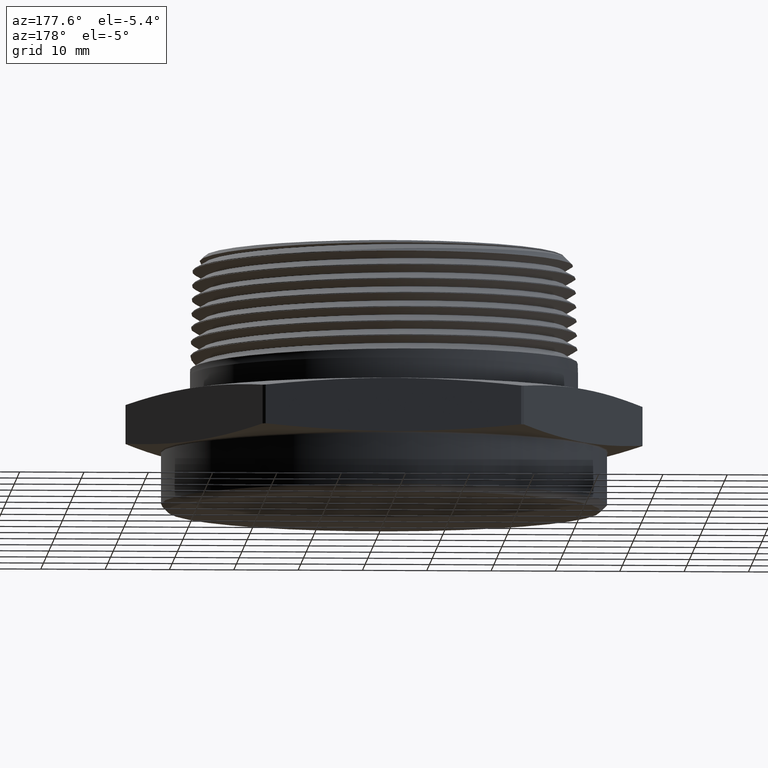
[diagram: clean part render]
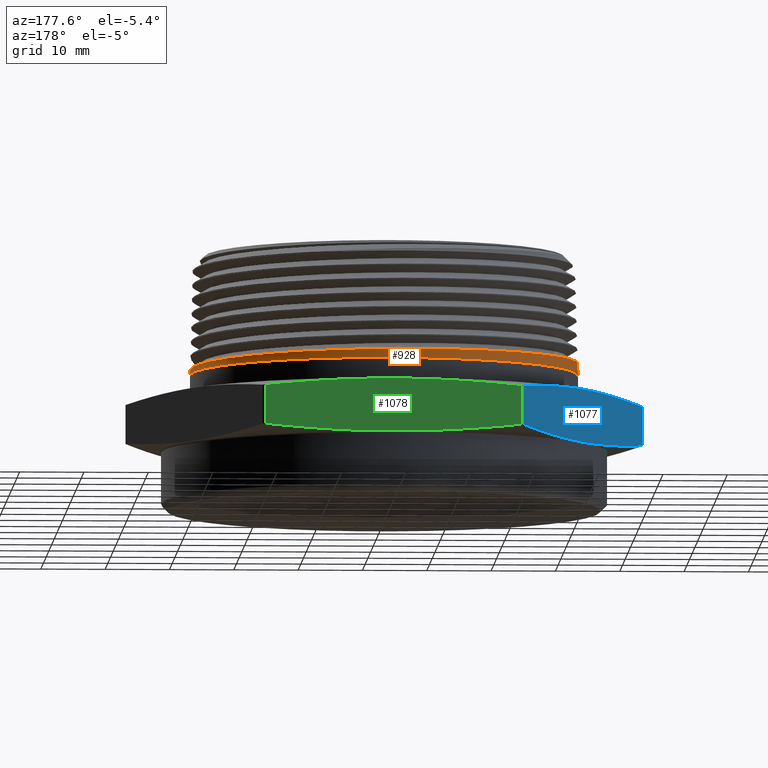
[diagram: same view with three faces highlighted in distinct colors, each labeled with its STEP entity id]
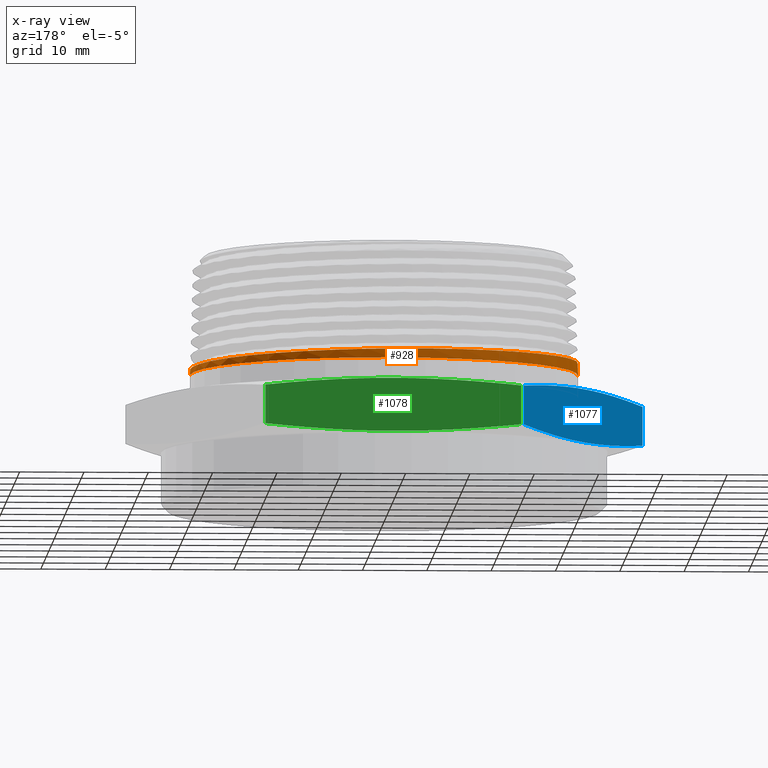
[diagram: x-ray of the same camera — body ghosted, the three highlighted faces saturated]
A machine part, auxiliary view with three faces highlighted in distinct colors.
The next image is the same camera in x-ray (body ghosted, the three faces saturated) — at least one of them is partly hidden behind the body in this view.
Their STEP definitions:

[orange] entity #928 — the highlighted conical surface has half-angle 1.47 deg.
#1 = B_SPLINE_CURVE_WITH_KNOTS ( 'NONE', 3,
 ( #4116, #4054, #4119, #4120, #4121, #4122, #4123, #4124, #4125, #4126, #4127, #4128, #4129, #4130, #4131, #4132, #4133, #4134, #4135, #4136, #4137, #4138, #4139, #4140, #4141, #4142, #4143, #4144, #4145, #4146, #4147, #4148, #4149, #4150, #4151, #4152, #4153, #4154, #4155, #4156, #4157, #4158, #2132, #2134, #2136, #2137, #2138, #2139, #2140, #2141, #2142, #2143, #2144, #2145, #2146, #2147, #2148, #2149, #2150 ),
 .UNSPECIFIED., .F., .F.,
 ( 4, 2, 2, 2, 2, 2, 2, 2, 2, 2, 2, 2, 1, 2, 2, 2, 2, 2, 2, 2, 2, 2, 2, 2, 2, 2, 2, 2, 2, 4 ),
 ( 1.265157035959991100, 1.271114233060938800, 1.277071430161886800, 1.280050028712360800, 1.283028627262834600, 1.288985824363782600, 1.290475123639019500, 1.291964422914256400, 1.294943021464730400, 1.300900218565678400, 1.302389517840915300, 1.303878817116152200, 1.306857415666626200, 1.309836014217100200, 1.311325313492337100, 1.312814612767574200, 1.318771809868521900, 1.321750408418995900, 1.323239707694232800, 1.324729006969469700, 1.330686204070417700, 1.332175503345654600, 1.333664802620891700, 1.336643401171365500, 1.342600598272313500, 1.345579196822787300, 1.348557795373261300, 1.351536393923735300, 1.354514992474209300, 1.360472189575157000 ),
 .UNSPECIFIED. ) ;
#259 = VERTEX_POINT ( 'NONE', #718 ) ;
#260 = VERTEX_POINT ( 'NONE', #719 ) ;
#261 = VERTEX_POINT ( 'NONE', #720 ) ;
#263 = VERTEX_POINT ( 'NONE', #722 ) ;
#364 = FACE_OUTER_BOUND ( 'NONE', #7762, .T. ) ;
#369 = CONICAL_SURFACE ( 'NONE', #1912, 1.190625841662516200, 0.02565634000430881300 ) ;
#439 = CIRCLE ( 'NONE', #1952, 1.187500000000000000 ) ;
#461 = LINE ( 'NONE', #2153, #466 ) ;
#463 = LINE ( 'NONE', #2151, #464 ) ;
#464 = VECTOR ( 'NONE', #2152, 39.37007874015748100 ) ;
#466 = VECTOR ( 'NONE', #2155, 39.37007874015748100 ) ;
#718 = CARTESIAN_POINT ( 'NONE',  ( 1.187500000000000000, 1.454268073987482100E-016, 0.4712952533779566900 ) ) ;
#719 = CARTESIAN_POINT ( 'NONE',  ( 1.186645000533695000, 2.325153602604478400E-015, 0.5046130164504506500 ) ) ;
#720 = CARTESIAN_POINT ( 'NONE',  ( -1.185529218039113300, 2.274924391407512300E-016, 0.5480930164504473900 ) ) ;
#722 = CARTESIAN_POINT ( 'NONE',  ( -1.187500000000000000, 0.0000000000000000000, 0.4712952533779566900 ) ) ;
#928 = ADVANCED_FACE ( 'NONE', ( #364 ), #369, .T. ) ;
#985 = EDGE_CURVE ( 'NONE', #259, #263, #439, .T. ) ;
#1003 = EDGE_CURVE ( 'NONE', #261, #260, #1, .T. ) ;
#1004 = EDGE_CURVE ( 'NONE', #260, #259, #463, .T. ) ;
#1005 = EDGE_CURVE ( 'NONE', #261, #263, #461, .T. ) ;
#1912 = AXIS2_PLACEMENT_3D ( 'NONE', #7502, #7503, #7501 ) ;
#1952 = AXIS2_PLACEMENT_3D ( 'NONE', #7452, #7453, #7454 ) ;
#2132 = CARTESIAN_POINT ( 'NONE',  ( 0.7218548040415977400, 0.9416272591902055100, 0.5172987961424917500 ) ) ;
#2134 = CARTESIAN_POINT ( 'NONE',  ( 0.7373033257065349000, 0.9295863388575664700, 0.5170698427939277600 ) ) ;
#2136 = CARTESIAN_POINT ( 'NONE',  ( 0.7824801641867199500, 0.8925529211223479600, 0.5163883320848224900 ) ) ;
#2137 = CARTESIAN_POINT ( 'NONE',  ( 0.8111929858414329600, 0.8665422282882092600, 0.5159395668998423300 ) ) ;
#2138 = CARTESIAN_POINT ( 'NONE',  ( 0.8932151111282196100, 0.7846382726929890300, 0.5145874166139703400 ) ) ;
#2139 = CARTESIAN_POINT ( 'NONE',  ( 0.9424482228740184200, 0.7249107285644358400, 0.5136886628153893900 ) ) ;
#2140 = CARTESIAN_POINT ( 'NONE',  ( 1.007797037613782100, 0.6273235666293351900, 0.5123187687695460700 ) ) ;
#2141 = CARTESIAN_POINT ( 'NONE',  ( 1.027838601989221600, 0.5939127469888761900, 0.5118621106508806100 ) ) ;
#2142 = CARTESIAN_POINT ( 'NONE',  ( 1.064399995896448700, 0.5256350527655588900, 0.5109586247198986100 ) ) ;
#2143 = CARTESIAN_POINT ( 'NONE',  ( 1.080946920566124000, 0.4907271711376317000, 0.5105111791534385800 ) ) ;
#2144 = CARTESIAN_POINT ( 'NONE',  ( 1.110599150168443800, 0.4193850267074643600, 0.5096101134771527900 ) ) ;
#2145 = CARTESIAN_POINT ( 'NONE',  ( 1.123704577839516300, 0.3829508208012160100, 0.5091563017313202000 ) ) ;
#2146 = CARTESIAN_POINT ( 'NONE',  ( 1.146399631428870700, 0.3085230475455215700, 0.5082486122123172100 ) ) ;
#2147 = CARTESIAN_POINT ( 'NONE',  ( 1.156000551553802300, 0.2703969431377229400, 0.5077932606791172300 ) ) ;
#2148 = CARTESIAN_POINT ( 'NONE',  ( 1.178913977157351800, 0.1557369007236940900, 0.5064295606771448400 ) ) ;
#2149 = CARTESIAN_POINT ( 'NONE',  ( 1.186621550452725500, 0.07834936641155605700, 0.5055268231515939200 ) ) ;
#2150 = CARTESIAN_POINT ( 'NONE',  ( 1.186645000533695000, 2.325153602604478400E-015, 0.5046130164504506500 ) ) ;
#2151 = CARTESIAN_POINT ( 'NONE',  ( 1.190625841662516200, 1.458096125974123800E-016, 0.3494869294921574300 ) ) ;
#2152 = DIRECTION ( 'NONE',  ( 0.02565352539212722600, 3.141650775831395700E-018, -0.9996708941621514900 ) ) ;
#2153 = CARTESIAN_POINT ( 'NONE',  ( -1.190625841662516200, 0.0000000000000000000, 0.3494869294921574300 ) ) ;
#2155 = DIRECTION ( 'NONE',  ( -0.02565352539212722600, 0.0000000000000000000, -0.9996708941621514900 ) ) ;
#4054 = CARTESIAN_POINT ( 'NONE',  ( -1.185552364866833100, 0.07726344532175590000, 0.5471910269729636200 ) ) ;
#4116 = CARTESIAN_POINT ( 'NONE',  ( -1.185529218039113300, 2.274924391407512300E-016, 0.5480930164504473900 ) ) ;
#4119 = CARTESIAN_POINT ( 'NONE',  ( -1.178086352173045100, 0.1543899314581342900, 0.5462908250482291200 ) ) ;
#4120 = CARTESIAN_POINT ( 'NONE',  ( -1.147583427452140600, 0.3080377417040107100, 0.5444622321591525700 ) ) ;
#4121 = CARTESIAN_POINT ( 'NONE',  ( -1.125045672143206100, 0.3820973092240323400, 0.5435629159192231200 ) ) ;
#4122 = CARTESIAN_POINT ( 'NONE',  ( -1.080744580254827400, 0.4892048604533593700, 0.5422099896608809600 ) ) ;
#4123 = CARTESIAN_POINT ( 'NONE',  ( -1.064215578262863900, 0.5242388180217841800, 0.5417556731158967900 ) ) ;
#4124 = CARTESIAN_POINT ( 'NONE',  ( -1.027550806646072600, 0.5929382687705682100, 0.5408467010763754500 ) ) ;
#4125 = CARTESIAN_POINT ( 'NONE',  ( -1.007342736713496200, 0.6266727826662276100, 0.5403909640290821500 ) ) ;
#4126 = CARTESIAN_POINT ( 'NONE',  ( -0.9425844693445903900, 0.7236058148130791700, 0.5390302385099566800 ) ) ;
#4127 = CARTESIAN_POINT ( 'NONE',  ( -0.8935883081882248800, 0.7833226022213313200, 0.5381329808507732100 ) ) ;
#4128 = CARTESIAN_POINT ( 'NONE',  ( -0.8251198639186297900, 0.8518844992812528700, 0.5370021423065878300 ) ) ;
#4129 = CARTESIAN_POINT ( 'NONE',  ( -0.8110617863376209400, 0.8652899435649631400, 0.5367746569754915400 ) ) ;
#4130 = CARTESIAN_POINT ( 'NONE',  ( -0.7822049237777806100, 0.8914769358367781200, 0.5363185009841774400 ) ) ;
#4131 = CARTESIAN_POINT ( 'NONE',  ( -0.7673636454827506000, 0.9042924785028266800, 0.5360891993062711900 ) ) ;
#4132 = CARTESIAN_POINT ( 'NONE',  ( -0.7220577596804596000, 0.9414943537273717800, 0.5354050127422423900 ) ) ;
#4133 = CARTESIAN_POINT ( 'NONE',  ( -0.6908620598927920400, 0.9646163587516342100, 0.5349550689753570500 ) ) ;
#4134 = CARTESIAN_POINT ( 'NONE',  ( -0.5943911507575859700, 1.029099077274784800, 0.5336007943509795100 ) ) ;
#4135 = CARTESIAN_POINT ( 'NONE',  ( -0.5262592485251443900, 1.065622663532655800, 0.5327029490711466800 ) ) ;
#4136 = CARTESIAN_POINT ( 'NONE',  ( -0.4362022294050961800, 1.102992859965931800, 0.5315651440979773900 ) ) ;
#4137 = CARTESIAN_POINT ( 'NONE',  ( -0.4178952989146358400, 1.110064857804311300, 0.5313353360683005200 ) ) ;
#4138 = CARTESIAN_POINT ( 'NONE',  ( -0.3811368055257720600, 1.123228837636532500, 0.5308783364505647000 ) ) ;
#4139 = CARTESIAN_POINT ( 'NONE',  ( -0.3626626550636379300, 1.129333128187707000, 0.5306508484705119200 ) ) ;
#4140 = CARTESIAN_POINT ( 'NONE',  ( -0.3069606477823183000, 1.146238862818395900, 0.5299715521159665800 ) ) ;
#4141 = CARTESIAN_POINT ( 'NONE',  ( -0.2319471195450937000, 1.165034084998976200, 0.5290755634887667200 ) ) ;
#4142 = CARTESIAN_POINT ( 'NONE',  ( -0.1554672780070059900, 1.176447018760473400, 0.5281689342902526900 ) ) ;
#4143 = CARTESIAN_POINT ( 'NONE',  ( -0.09754960539404714000, 1.182198757297056700, 0.5274897392509081400 ) ) ;
#4144 = CARTESIAN_POINT ( 'NONE',  ( -0.07815058714126262000, 1.183647183855378600, 0.5272633082092207400 ) ) ;
#4145 = CARTESIAN_POINT ( 'NONE',  ( -0.03916292208708917200, 1.185589339514688400, 0.5268091500416661700 ) ) ;
#4146 = CARTESIAN_POINT ( 'NONE',  ( -0.01954189397042072400, 1.186080644378378200, 0.5265810441218236000 ) ) ;
#4147 = CARTESIAN_POINT ( 'NONE',  ( 0.07798128790274976000, 1.186112910210298100, 0.5254430795010510700 ) ) ;
#4148 = CARTESIAN_POINT ( 'NONE',  ( 0.1549157591591844300, 1.178514770269864200, 0.5245452872261151500 ) ) ;
#4149 = CARTESIAN_POINT ( 'NONE',  ( 0.2687324953125742600, 1.155973076588658200, 0.5231915886205067400 ) ) ;
#4150 = CARTESIAN_POINT ( 'NONE',  ( 0.3064053281851953900, 1.146588511806850800, 0.5227364309159487900 ) ) ;
#4151 = CARTESIAN_POINT ( 'NONE',  ( 0.3625030967906844900, 1.129618340833904200, 0.5220525827164274000 ) ) ;
#4152 = CARTESIAN_POINT ( 'NONE',  ( 0.3811306150739211500, 1.123475660409458500, 0.5218243083834801500 ) ) ;
#4153 = CARTESIAN_POINT ( 'NONE',  ( 0.4178335666572631200, 1.110360670836470800, 0.5213709071737152600 ) ) ;
#4154 = CARTESIAN_POINT ( 'NONE',  ( 0.4359619717756860700, 1.103373228060992300, 0.5211451340211865600 ) ) ;
#4155 = CARTESIAN_POINT ( 'NONE',  ( 0.5255068070190290800, 1.066321443092879100, 0.5200144909034597500 ) ) ;
#4156 = CARTESIAN_POINT ( 'NONE',  ( 0.5936629346111258500, 1.029973314738974200, 0.5191175203917365300 ) ) ;
#4157 = CARTESIAN_POINT ( 'NONE',  ( 0.6744788076253216400, 0.9760982503665707200, 0.5179845058043317500 ) ) ;
#4158 = CARTESIAN_POINT ( 'NONE',  ( 0.6904210562605198600, 0.9648974840390091000, 0.5177564317700893400 ) ) ;
#7452 = CARTESIAN_POINT ( 'NONE',  ( 0.0000000000000000000, 0.0000000000000000000, 0.4712952533779566900 ) ) ;
#7453 = DIRECTION ( 'NONE',  ( 0.0000000000000000000, 0.0000000000000000000, 1.000000000000000000 ) ) ;
#7454 = DIRECTION ( 'NONE',  ( -1.000000000000000000, 0.0000000000000000000, 0.0000000000000000000 ) ) ;
#7501 = DIRECTION ( 'NONE',  ( -1.000000000000000000, 0.0000000000000000000, 0.0000000000000000000 ) ) ;
#7502 = CARTESIAN_POINT ( 'NONE',  ( 0.0000000000000000000, 0.0000000000000000000, 0.3494869294921574300 ) ) ;
#7503 = DIRECTION ( 'NONE',  ( -0.0000000000000000000, -0.0000000000000000000, -1.000000000000000000 ) ) ;
#7758 = ORIENTED_EDGE ( 'NONE', *, *, #1003, .T. ) ;
#7759 = ORIENTED_EDGE ( 'NONE', *, *, #1004, .T. ) ;
#7760 = ORIENTED_EDGE ( 'NONE', *, *, #985, .T. ) ;
#7762 = EDGE_LOOP ( 'NONE', ( #7758, #7759, #7760, #7763 ) ) ;
#7763 = ORIENTED_EDGE ( 'NONE', *, *, #1005, .F. ) ;

[blue] entity #1077 — the highlighted planar face has unit normal (0.866, -0.5, 0).
#234 = VERTEX_POINT ( 'NONE', #1106 ) ;
#237 = VERTEX_POINT ( 'NONE', #1116 ) ;
#245 = VERTEX_POINT ( 'NONE', #704 ) ;
#251 = VERTEX_POINT ( 'NONE', #710 ) ;
#704 = CARTESIAN_POINT ( 'NONE',  ( -1.581678705560181500, 0.01045212071999071300, 0.04606382122047169400 ) ) ;
#710 = CARTESIAN_POINT ( 'NONE',  ( -1.581678705560181500, 0.01045212071999071300, 0.2839361787795283700 ) ) ;
#964 = EDGE_CURVE ( 'NONE', #234, #245, #7329, .T. ) ;
#978 = EDGE_CURVE ( 'NONE', #251, #237, #7335, .T. ) ;
#1055 = EDGE_CURVE ( 'NONE', #245, #251, #7212, .T. ) ;
#1066 = EDGE_CURVE ( 'NONE', #237, #234, #7231, .T. ) ;
#1077 = ADVANCED_FACE ( 'NONE', ( #7241 ), #7042, .F. ) ;
#1106 = CARTESIAN_POINT ( 'NONE',  ( -0.7998911548470244400, 1.364547879280008800, 0.04606382122047169400 ) ) ;
#1116 = CARTESIAN_POINT ( 'NONE',  ( -0.7998911548470244400, 1.364547879280008800, 0.2839361787795282600 ) ) ;
#1969 = AXIS2_PLACEMENT_3D ( 'NONE', #7040, #7044, #7045 ) ;
#6947 = CARTESIAN_POINT ( 'NONE',  ( -1.581678705560181500, 0.01045212071999071300, 4.905664297508273200E-017 ) ) ;
#6948 = DIRECTION ( 'NONE',  ( 1.254986547952384500E-016, 0.0000000000000000000, 1.000000000000000000 ) ) ;
#6973 = CARTESIAN_POINT ( 'NONE',  ( -0.7998911548470244400, 1.364547879280008800, -4.905664297508273200E-017 ) ) ;
#6974 = DIRECTION ( 'NONE',  ( -1.254986547952384500E-016, -0.0000000000000000000, -1.000000000000000000 ) ) ;
#7040 = CARTESIAN_POINT ( 'NONE',  ( -0.7938566201357349900, 1.375000000000000000, 0.3300000000000000200 ) ) ;
#7042 = PLANE ( 'NONE',  #1969 ) ;
#7044 = DIRECTION ( 'NONE',  ( 0.8660254037844387100, -0.4999999999999999400, 0.0000000000000000000 ) ) ;
#7045 = DIRECTION ( 'NONE',  ( 0.4999999999999998900, 0.8660254037844386000, 0.0000000000000000000 ) ) ;
#7212 = LINE ( 'NONE', #6947, #7216 ) ;
#7216 = VECTOR ( 'NONE', #6948, 39.37007874015748100 ) ;
#7231 = LINE ( 'NONE', #6973, #7234 ) ;
#7234 = VECTOR ( 'NONE', #6974, 39.37007874015748100 ) ;
#7241 = FACE_OUTER_BOUND ( 'NONE', #7902, .T. ) ;
#7329 = B_SPLINE_CURVE_WITH_KNOTS ( 'NONE', 3,
 ( #7338, #7351, #7355, #7356, #7357, #7358, #7359, #7360, #7361 ),
 .UNSPECIFIED., .F., .F.,
 ( 4, 2, 1, 2, 4 ),
 ( 1.903613379434268900E-006, 0.009930605507436527200, 0.01985930740149361900, 0.02978800929555071300, 0.03971671118960780300 ),
 .UNSPECIFIED. ) ;
#7335 = B_SPLINE_CURVE_WITH_KNOTS ( 'NONE', 3,
 ( #7424, #7423, #7428, #7429, #7430, #7431, #7432, #7433, #7434 ),
 .UNSPECIFIED., .F., .F.,
 ( 4, 2, 1, 2, 4 ),
 ( 1.903613379468012400E-006, 0.009930605507436558400, 0.01985930740149364700, 0.02978800929555073700, 0.03971671118960783100 ),
 .UNSPECIFIED. ) ;
#7338 = CARTESIAN_POINT ( 'NONE',  ( -0.7998911548470244400, 1.364547879280008800, 0.04606382122047169400 ) ) ;
#7351 = CARTESIAN_POINT ( 'NONE',  ( -0.8650401174064541500, 1.251706566066674400, 0.03237478046069743000 ) ) ;
#7355 = CARTESIAN_POINT ( 'NONE',  ( -0.9301890799658838500, 1.138865252853339200, 0.02127979410151632100 ) ) ;
#7356 = CARTESIAN_POINT ( 'NONE',  ( -1.060487005084743300, 0.9131826264266694700, 0.006132968187239073100 ) ) ;
#7357 = CARTESIAN_POINT ( 'NONE',  ( -1.190784930203602700, 0.6874999999999996700, -0.001881836953839036600 ) ) ;
#7358 = CARTESIAN_POINT ( 'NONE',  ( -1.321082855322462700, 0.4618173735733299700, 0.006132968187239067100 ) ) ;
#7359 = CARTESIAN_POINT ( 'NONE',  ( -1.451380780441321900, 0.2361347471466603800, 0.02127979410151635200 ) ) ;
#7360 = CARTESIAN_POINT ( 'NONE',  ( -1.516529743000751800, 0.1232934339333254800, 0.03237478046069750700 ) ) ;
#7361 = CARTESIAN_POINT ( 'NONE',  ( -1.581678705560181500, 0.01045212071999071300, 0.04606382122047169400 ) ) ;
#7423 = CARTESIAN_POINT ( 'NONE',  ( -1.516529743000751800, 0.1232934339333255200, 0.2976252195393025400 ) ) ;
#7424 = CARTESIAN_POINT ( 'NONE',  ( -1.581678705560181500, 0.01045212071999071300, 0.2839361787795283700 ) ) ;
#7428 = CARTESIAN_POINT ( 'NONE',  ( -1.451380780441321900, 0.2361347471466603300, 0.3087202058984836500 ) ) ;
#7429 = CARTESIAN_POINT ( 'NONE',  ( -1.321082855322462300, 0.4618173735733299100, 0.3238670318127607800 ) ) ;
#7430 = CARTESIAN_POINT ( 'NONE',  ( -1.190784930203602900, 0.6874999999999991100, 0.3318818369538388800 ) ) ;
#7431 = CARTESIAN_POINT ( 'NONE',  ( -1.060487005084743700, 0.9131826264266692500, 0.3238670318127608300 ) ) ;
#7432 = CARTESIAN_POINT ( 'NONE',  ( -0.9301890799658841800, 1.138865252853339200, 0.3087202058984836500 ) ) ;
#7433 = CARTESIAN_POINT ( 'NONE',  ( -0.8650401174064544800, 1.251706566066673500, 0.2976252195393026000 ) ) ;
#7434 = CARTESIAN_POINT ( 'NONE',  ( -0.7998911548470244400, 1.364547879280008800, 0.2839361787795282600 ) ) ;
#7697 = ORIENTED_EDGE ( 'NONE', *, *, #964, .T. ) ;
#7698 = ORIENTED_EDGE ( 'NONE', *, *, #1055, .T. ) ;
#7699 = ORIENTED_EDGE ( 'NONE', *, *, #978, .T. ) ;
#7700 = ORIENTED_EDGE ( 'NONE', *, *, #1066, .T. ) ;
#7902 = EDGE_LOOP ( 'NONE', ( #7697, #7698, #7699, #7700 ) ) ;

[green] entity #1078 — the highlighted planar face has unit normal (0, -1, 0).
#273 = VERTEX_POINT ( 'NONE', #732 ) ;
#276 = VERTEX_POINT ( 'NONE', #735 ) ;
#732 = CARTESIAN_POINT ( 'NONE',  ( 0.7817875507131566400, 1.375000000000000000, 0.04606382122047169400 ) ) ;
#735 = CARTESIAN_POINT ( 'NONE',  ( 0.7817875507131566400, 1.375000000000000000, 0.2839361787795280400 ) ) ;
#966 = EDGE_CURVE ( 'NONE', #273, #7907, #7336, .T. ) ;
#976 = EDGE_CURVE ( 'NONE', #7911, #276, #7332, .T. ) ;
#1064 = EDGE_CURVE ( 'NONE', #276, #273, #7228, .T. ) ;
#1067 = EDGE_CURVE ( 'NONE', #7907, #7911, #7233, .T. ) ;
#1078 = ADVANCED_FACE ( 'NONE', ( #7237 ), #7041, .F. ) ;
#1970 = AXIS2_PLACEMENT_3D ( 'NONE', #7043, #7048, #7049 ) ;
#6467 = CARTESIAN_POINT ( 'NONE',  ( -0.7817875507131566400, 1.375000000000000000, 0.04606382122047159000 ) ) ;
#6470 = CARTESIAN_POINT ( 'NONE',  ( -0.7817875507131566400, 1.375000000000000000, 0.2839361787795282600 ) ) ;
#6961 = CARTESIAN_POINT ( 'NONE',  ( 0.7817875507131566400, 1.375000000000000000, -9.811328595016540200E-017 ) ) ;
#6962 = DIRECTION ( 'NONE',  ( -1.254986547952384500E-016, -0.0000000000000000000, -1.000000000000000000 ) ) ;
#6975 = CARTESIAN_POINT ( 'NONE',  ( -0.7817875507131566400, 1.375000000000000000, 9.811328595016540200E-017 ) ) ;
#6976 = DIRECTION ( 'NONE',  ( 1.254986547952384500E-016, 0.0000000000000000000, 1.000000000000000000 ) ) ;
#7041 = PLANE ( 'NONE',  #1970 ) ;
#7043 = CARTESIAN_POINT ( 'NONE',  ( 0.7938566201357347700, 1.375000000000000000, 0.3300000000000000200 ) ) ;
#7048 = DIRECTION ( 'NONE',  ( 0.0000000000000000000, -1.000000000000000000, 0.0000000000000000000 ) ) ;
#7049 = DIRECTION ( 'NONE',  ( 0.0000000000000000000, -0.0000000000000000000, -1.000000000000000000 ) ) ;
#7228 = LINE ( 'NONE', #6961, #7230 ) ;
#7230 = VECTOR ( 'NONE', #6962, 39.37007874015748100 ) ;
#7233 = LINE ( 'NONE', #6975, #7236 ) ;
#7236 = VECTOR ( 'NONE', #6976, 39.37007874015748100 ) ;
#7237 = FACE_OUTER_BOUND ( 'NONE', #7826, .T. ) ;
#7332 = B_SPLINE_CURVE_WITH_KNOTS ( 'NONE', 3,
 ( #7410, #7409, #7415, #7416, #7417, #7418, #7419, #7420, #7421, #7422 ),
 .UNSPECIFIED., .F., .F.,
 ( 4, 2, 2, 2, 4 ),
 ( 0.03377675413933822800, 0.04374512694864142500, 0.05371349975794462200, 0.06368187256724781900, 0.07365024537655101600 ),
 .UNSPECIFIED. ) ;
#7336 = B_SPLINE_CURVE_WITH_KNOTS ( 'NONE', 3,
 ( #7362, #7363, #7367, #7368, #7369, #7370, #7371, #7372, #7373, #7374 ),
 .UNSPECIFIED., .F., .F.,
 ( 4, 2, 2, 2, 4 ),
 ( 0.07652353289355171000, 0.08648215368286722700, 0.09644077447218275800, 0.1063993952614982900, 0.1163580160508138200 ),
 .UNSPECIFIED. ) ;
#7362 = CARTESIAN_POINT ( 'NONE',  ( 0.7817875507131566400, 1.375000000000000000, 0.04606382122047169400 ) ) ;
#7363 = CARTESIAN_POINT ( 'NONE',  ( 0.6517690188196211300, 1.375000000000000200, 0.03240413338589520600 ) ) ;
#7367 = CARTESIAN_POINT ( 'NONE',  ( 0.5216927118626062400, 1.375000000000000000, 0.02132047231032512700 ) ) ;
#7368 = CARTESIAN_POINT ( 'NONE',  ( 0.2613827868470721700, 1.375000000000000000, 0.006167207480143550900 ) ) ;
#7369 = CARTESIAN_POINT ( 'NONE',  ( 0.1311481683233737500, 1.375000000000000000, 0.002142211639687543200 ) ) ;
#7370 = CARTESIAN_POINT ( 'NONE',  ( -0.1295008694142240600, 1.374999999999999300, 0.002109024465002107700 ) ) ;
#7371 = CARTESIAN_POINT ( 'NONE',  ( -0.2599153173382532900, 1.375000000000000000, 0.006102113234283274400 ) ) ;
#7372 = CARTESIAN_POINT ( 'NONE',  ( -0.5209049358096949900, 1.375000000000000000, 0.02125445821051955700 ) ) ;
#7373 = CARTESIAN_POINT ( 'NONE',  ( -0.6515949468959757500, 1.375000000000000200, 0.03238584546875673800 ) ) ;
#7374 = CARTESIAN_POINT ( 'NONE',  ( -0.7817875507131566400, 1.375000000000000000, 0.04606382122047159000 ) ) ;
#7409 = CARTESIAN_POINT ( 'NONE',  ( -0.6515949468959755200, 1.375000000000000200, 0.2976141545312431200 ) ) ;
#7410 = CARTESIAN_POINT ( 'NONE',  ( -0.7817875507131566400, 1.375000000000000000, 0.2839361787795282600 ) ) ;
#7415 = CARTESIAN_POINT ( 'NONE',  ( -0.5209049358096944400, 1.375000000000000200, 0.3087455417894801600 ) ) ;
#7416 = CARTESIAN_POINT ( 'NONE',  ( -0.2599153173382529000, 1.374999999999999800, 0.3238978867657162900 ) ) ;
#7417 = CARTESIAN_POINT ( 'NONE',  ( -0.1295008694142238700, 1.375000000000000000, 0.3278909755349976300 ) ) ;
#7418 = CARTESIAN_POINT ( 'NONE',  ( 0.1311481683233736700, 1.375000000000000200, 0.3278577883603119900 ) ) ;
#7419 = CARTESIAN_POINT ( 'NONE',  ( 0.2613827868470718400, 1.375000000000000000, 0.3238327925198560300 ) ) ;
#7420 = CARTESIAN_POINT ( 'NONE',  ( 0.5216927118626059100, 1.375000000000000000, 0.3086795276896743800 ) ) ;
#7421 = CARTESIAN_POINT ( 'NONE',  ( 0.6517690188196205700, 1.375000000000000000, 0.2975958666141043100 ) ) ;
#7422 = CARTESIAN_POINT ( 'NONE',  ( 0.7817875507131566400, 1.375000000000000000, 0.2839361787795280400 ) ) ;
#7701 = ORIENTED_EDGE ( 'NONE', *, *, #966, .T. ) ;
#7702 = ORIENTED_EDGE ( 'NONE', *, *, #1067, .T. ) ;
#7703 = ORIENTED_EDGE ( 'NONE', *, *, #976, .T. ) ;
#7704 = ORIENTED_EDGE ( 'NONE', *, *, #1064, .T. ) ;
#7826 = EDGE_LOOP ( 'NONE', ( #7701, #7702, #7703, #7704 ) ) ;
#7907 = VERTEX_POINT ( 'NONE', #6467 ) ;
#7911 = VERTEX_POINT ( 'NONE', #6470 ) ;